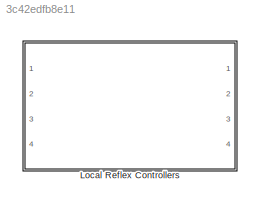
MODEL slx_3c42edfb8e11
KIND model
CONFIG AbsTol = auto
CONFIG EnableMultiTasking = off
CONFIG FixedStep = auto
CONFIG MaxStep = auto
CONFIG MinStep = auto
CONFIG RelTol = 1e-3
CONFIG SampleTimeConstraint = Unconstrained
CONFIG Solver = VariableStepAuto
CONFIG SolverName = VariableStepAuto
CONFIG StartTime = 0.0
CONFIG StopTime = 10.0
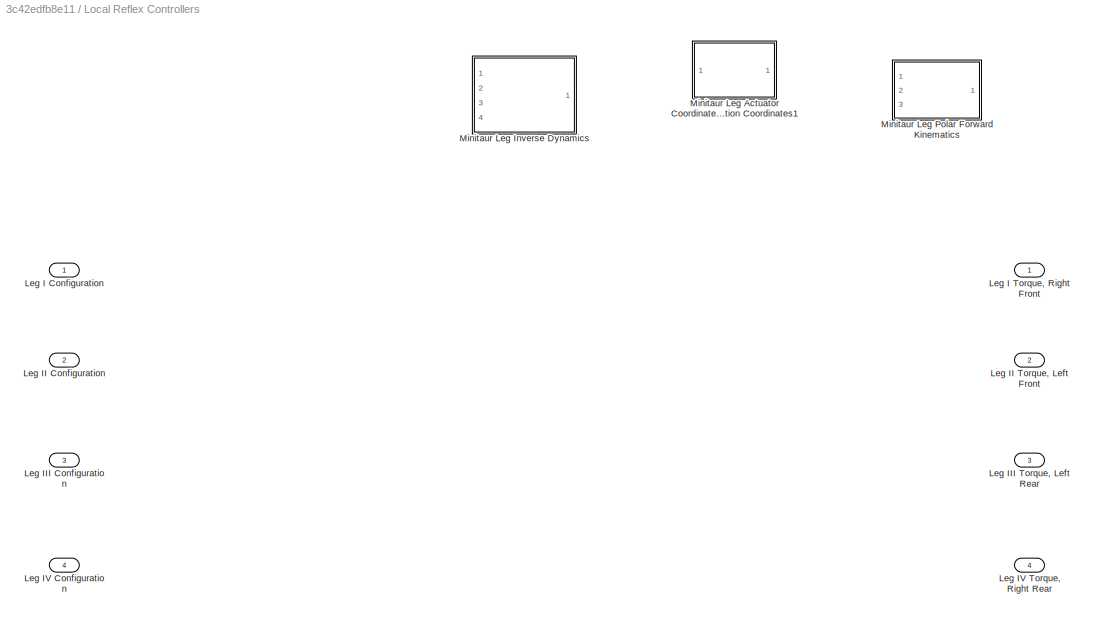
BLOCK [SubSystem] Local Reflex Controllers 
  Ports = [4, 4]
  RequestExecContextInheritance = off
  Variant = off
BLOCK [Inport] Local Reflex Controllers /Leg I Configuration
  IconDisplay = Port number
  PortDimensions = 2
BLOCK [Outport] Local Reflex Controllers /Leg I Torque, Right Front
  IconDisplay = Port number
BLOCK [Inport] Local Reflex Controllers /Leg II Configuration
  IconDisplay = Port number
  Port = 2
  PortDimensions = 2
BLOCK [Outport] Local Reflex Controllers /Leg II Torque, Left Front
  IconDisplay = Port number
  Port = 2
BLOCK [Inport] Local Reflex Controllers /Leg III Configuration
  IconDisplay = Port number
  Port = 3
  PortDimensions = 2
BLOCK [Outport] Local Reflex Controllers /Leg III Torque, Left Rear
  IconDisplay = Port number
  Port = 3
BLOCK [Inport] Local Reflex Controllers /Leg IV Configuration
  IconDisplay = Port number
  Port = 4
  PortDimensions = 2
BLOCK [Outport] Local Reflex Controllers /Leg IV Torque, Right Rear
  IconDisplay = Port number
  Port = 4
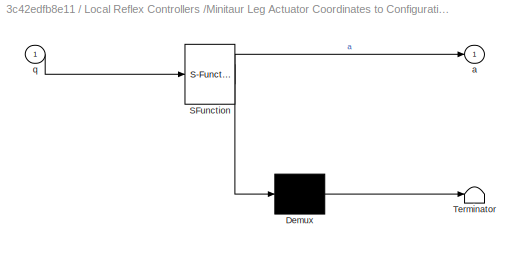
BLOCK [SubSystem] Local Reflex Controllers /Minitaur Leg Actuator Coordinates to Configuration Coordinates1
  ErrorFcn = Stateflow.Translate.translate
  PermitHierarchicalResolution = ExplicitOnly
  Ports = [1, 1]
  RequestExecContextInheritance = off
  SFBlockType = MATLAB Function
  TreatAsAtomicUnit = on
  Variant = off
BLOCK [Demux] Local Reflex Controllers /Minitaur Leg Actuator Coordinates to Configuration Coordinates1/ Demux 
  Outputs = 1
  Ports = [1, 1]
BLOCK [S-Function] Local Reflex Controllers /Minitaur Leg Actuator Coordinates to Configuration Coordinates1/ SFunction 
  EnableBusSupport = on
  FunctionName = sf_sfun
  PortCounts = [1 2]
  Ports = [1, 2]
  SFcnIsStateOwnerBlock = off
  SFunctionDeploymentMode = off
  Tag = Stateflow S-Function tempReflexBlockBKP 10
BLOCK [Terminator] Local Reflex Controllers /Minitaur Leg Actuator Coordinates to Configuration Coordinates1/ Terminator 
BLOCK [Outport] Local Reflex Controllers /Minitaur Leg Actuator Coordinates to Configuration Coordinates1/a
  IconDisplay = Port number
BLOCK [Inport] Local Reflex Controllers /Minitaur Leg Actuator Coordinates to Configuration Coordinates1/q
  IconDisplay = Port number
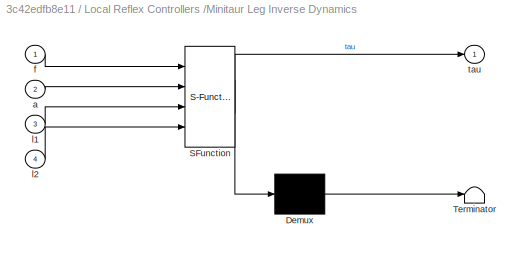
BLOCK [SubSystem] Local Reflex Controllers /Minitaur Leg Inverse Dynamics
  ErrorFcn = Stateflow.Translate.translate
  PermitHierarchicalResolution = ExplicitOnly
  Ports = [4, 1]
  RequestExecContextInheritance = off
  SFBlockType = MATLAB Function
  TreatAsAtomicUnit = on
  Variant = off
BLOCK [Demux] Local Reflex Controllers /Minitaur Leg Inverse Dynamics/ Demux 
  Outputs = 1
  Ports = [1, 1]
BLOCK [S-Function] Local Reflex Controllers /Minitaur Leg Inverse Dynamics/ SFunction 
  EnableBusSupport = on
  FunctionName = sf_sfun
  PortCounts = [4 2]
  Ports = [4, 2]
  SFcnIsStateOwnerBlock = off
  SFunctionDeploymentMode = off
  Tag = Stateflow S-Function tempReflexBlockBKP 11
BLOCK [Terminator] Local Reflex Controllers /Minitaur Leg Inverse Dynamics/ Terminator 
BLOCK [Inport] Local Reflex Controllers /Minitaur Leg Inverse Dynamics/a
  IconDisplay = Port number
  Port = 2
BLOCK [Inport] Local Reflex Controllers /Minitaur Leg Inverse Dynamics/f
  IconDisplay = Port number
BLOCK [Inport] Local Reflex Controllers /Minitaur Leg Inverse Dynamics/l1
  IconDisplay = Port number
  Port = 3
BLOCK [Inport] Local Reflex Controllers /Minitaur Leg Inverse Dynamics/l2
  IconDisplay = Port number
  Port = 4
BLOCK [Outport] Local Reflex Controllers /Minitaur Leg Inverse Dynamics/tau
  IconDisplay = Port number
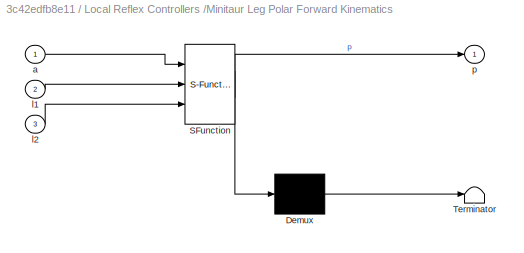
BLOCK [SubSystem] Local Reflex Controllers /Minitaur Leg Polar Forward Kinematics
  ErrorFcn = Stateflow.Translate.translate
  PermitHierarchicalResolution = ExplicitOnly
  Ports = [3, 1]
  RequestExecContextInheritance = off
  SFBlockType = MATLAB Function
  TreatAsAtomicUnit = on
  Variant = off
BLOCK [Demux] Local Reflex Controllers /Minitaur Leg Polar Forward Kinematics/ Demux 
  Outputs = 1
  Ports = [1, 1]
BLOCK [S-Function] Local Reflex Controllers /Minitaur Leg Polar Forward Kinematics/ SFunction 
  EnableBusSupport = on
  FunctionName = sf_sfun
  PortCounts = [3 2]
  Ports = [3, 2]
  SFcnIsStateOwnerBlock = off
  SFunctionDeploymentMode = off
  Tag = Stateflow S-Function tempReflexBlockBKP 12
BLOCK [Terminator] Local Reflex Controllers /Minitaur Leg Polar Forward Kinematics/ Terminator 
BLOCK [Inport] Local Reflex Controllers /Minitaur Leg Polar Forward Kinematics/a
  IconDisplay = Port number
BLOCK [Inport] Local Reflex Controllers /Minitaur Leg Polar Forward Kinematics/l1
  IconDisplay = Port number
  Port = 2
BLOCK [Inport] Local Reflex Controllers /Minitaur Leg Polar Forward Kinematics/l2
  IconDisplay = Port number
  Port = 3
BLOCK [Outport] Local Reflex Controllers /Minitaur Leg Polar Forward Kinematics/p
  IconDisplay = Port number
CHART Local Reflex Controllers /Minitaur Leg
Actuator Coordinates to 
Configuration Coordinates1 states=1 transitions=1
  STATE_LABEL 'eML_blk_kernel()'
  STATE_LABEL "SCRIPT:\nfunction a = legActToConfig(q)\n% Converts from actuator coordinates q = [theta_A theta_B] to leg\n% configuration a = [alpha beta].\n\n    a = [pi 0]' + 0.5*[1 1; 1 -1]*q;\n\nend"
CHART Local Reflex Controllers /Minitaur Leg
Inverse Dynamics states=1 transitions=1
  STATE_LABEL 'eML_blk_kernel()'
  STATE_LABEL "SCRIPT:\nfunction tau = legInvDynamics(f,a,l1,l2)\n% Computes the actuator torques corresponding to the desired end-effector\n% force. Implements tau = J'f, where J is the J' is the leg jacobian\n% transpose.\n\n    % Compute leg jacobian\n    B = a(2);\n    dRdB = l1*sin(B)-(l1^2*sin(B)*cos(B))/sqrt(l2^2-(l1*sin(B))^2);\n%     J = 0.5*[1 1; dRdB -1];\n\n    J = 0.5*[1 1; -dRdB 1];\n    \n    % Compute actuato...<+34ch>"
CHART Local Reflex Controllers /Minitaur Leg
Polar Forward Kinematics states=1 transitions=1
  STATE_LABEL 'eML_blk_kernel()'
  STATE_LABEL 'SCRIPT:\nfunction p = legPolarFK(a,l1,l2)\n% Computes the forward kinematics for the minitaur leg in polar\n% coordinates.\n% a = [alpha beta] are the leg configuration parameters\n\n    p = zeros(2,1);\n    p(1) = a(1);\n    p(2) = sqrt(l2^2-(l1*sin(a(2)))^2)-l1*cos(a(2));\n    \nend'
